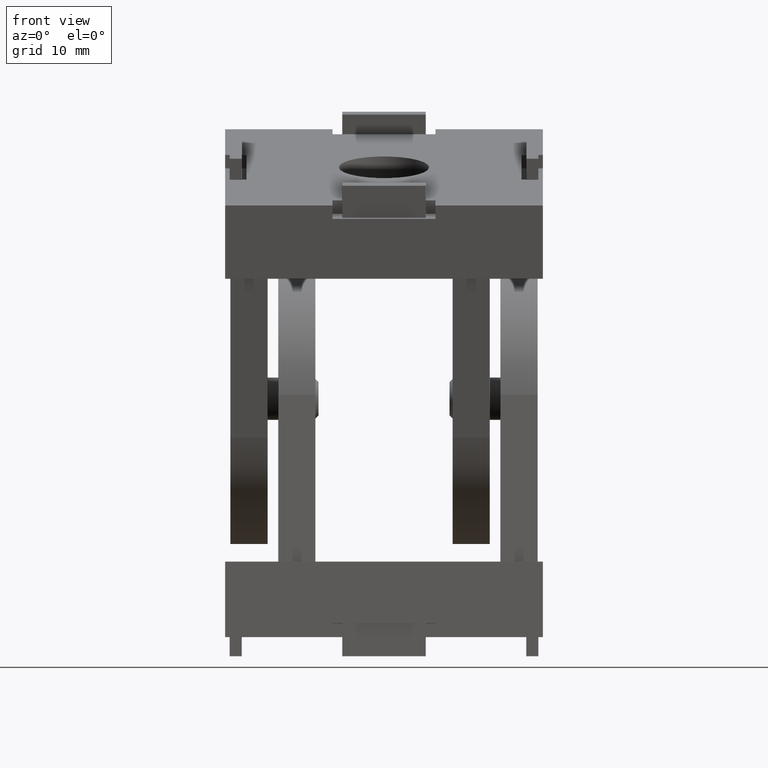
[diagram: clean part render]
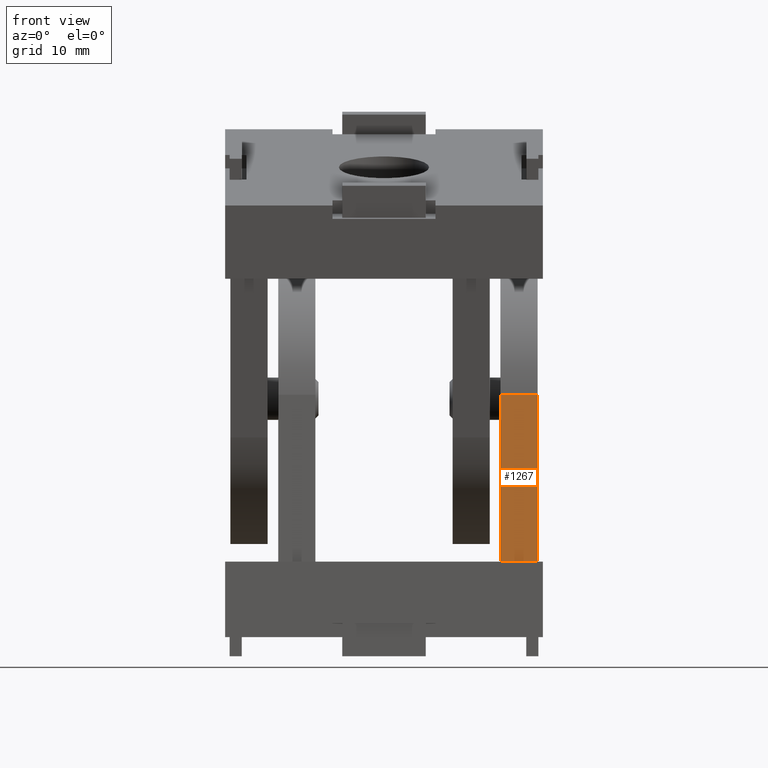
[diagram: same view with one face highlighted and labeled with its STEP entity id]
A machine part, front view. The second image highlights one B-rep face of the part: STEP entity #1267.
In plain terms, the highlighted planar face has unit normal (0, -0.9996, 0.0274).
Its self-contained STEP definition (entity closure, byte-faithful):
#44=LINE('',#1750,#184);
#49=LINE('',#1762,#189);
#165=LINE('',#2010,#305);
#166=LINE('',#2011,#306);
#184=VECTOR('',#1420,15.7054130795723);
#189=VECTOR('',#1429,15.7054130795723);
#305=VECTOR('',#1645,3.5);
#306=VECTOR('',#1646,3.5);
#410=FACE_OUTER_BOUND('',#497,.T.);
#497=EDGE_LOOP('',(#1054,#1055,#1056,#1057));
#553=VERTEX_POINT('',#1747);
#554=VERTEX_POINT('',#1749);
#556=VERTEX_POINT('',#1755);
#559=VERTEX_POINT('',#1760);
#668=EDGE_CURVE('',#553,#554,#44,.T.);
#674=EDGE_CURVE('',#559,#556,#49,.T.);
#794=EDGE_CURVE('',#553,#556,#165,.T.);
#795=EDGE_CURVE('',#554,#559,#166,.T.);
#1054=ORIENTED_EDGE('',*,*,#668,.F.);
#1055=ORIENTED_EDGE('',*,*,#794,.T.);
#1056=ORIENTED_EDGE('',*,*,#674,.F.);
#1057=ORIENTED_EDGE('',*,*,#795,.F.);
#1201=PLANE('',#1356);
#1267=ADVANCED_FACE('',(#410),#1201,.T.);
#1356=AXIS2_PLACEMENT_3D('',#2009,#1643,#1644);
#1420=DIRECTION('',(0.,-0.0273873434676063,-0.999624896357523));
#1429=DIRECTION('',(0.,0.0273873434676063,0.999624896357523));
#1643=DIRECTION('center_axis',(0.,-0.999624896357523,0.0273873434676063));
#1644=DIRECTION('ref_axis',(0.,0.0273873434676062,0.999624896357522));
#1645=DIRECTION('',(-1.,0.,0.));
#1646=DIRECTION('',(-1.,0.,0.));
#1747=CARTESIAN_POINT('',(14.45,-13.6698704576891,22.7995219219195));
#1749=CARTESIAN_POINT('',(14.45,-14.1,7.1));
#1750=CARTESIAN_POINT('',(14.45,-13.6698704576891,22.7995219219195));
#1755=CARTESIAN_POINT('',(10.95,-13.6698704576891,22.7995219219195));
#1760=CARTESIAN_POINT('',(10.95,-14.1,7.1));
#1762=CARTESIAN_POINT('',(10.95,-13.6698704576891,22.7995219219195));
#2009=CARTESIAN_POINT('Origin',(14.45,-14.1,7.1));
#2010=CARTESIAN_POINT('',(14.45,-13.6698704576891,22.7995219219195));
#2011=CARTESIAN_POINT('',(7.225,-14.1,7.1));